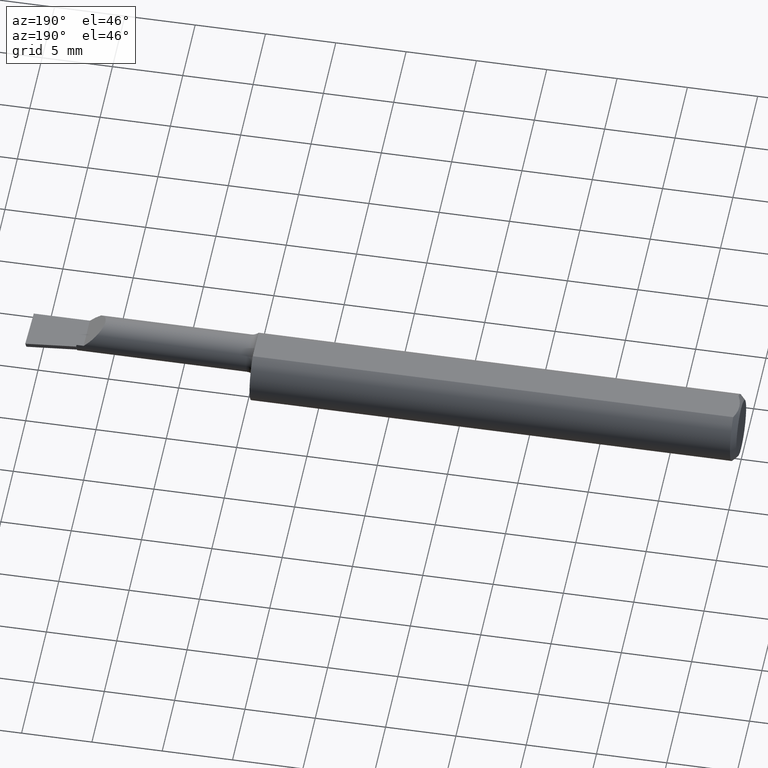
[diagram: clean part render]
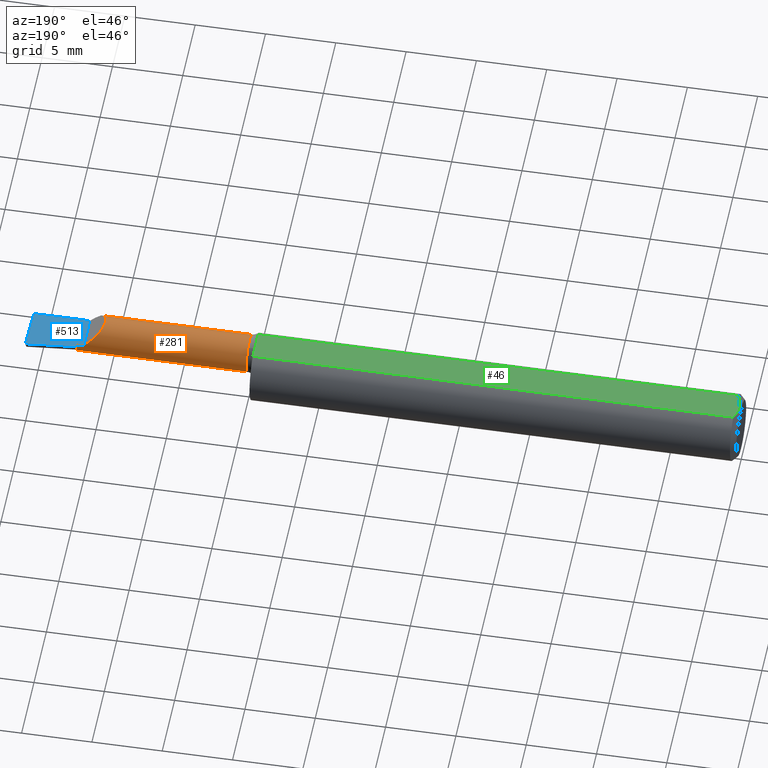
[diagram: same view with three faces highlighted in distinct colors, each labeled with its STEP entity id]
A machine part, auxiliary view with three faces highlighted in distinct colors.
Their STEP definitions:

[orange] entity #281 — the highlighted cylindrical surface (edge-blend (fillet) strip) has radius 1.3183 mm, axis along (-1, 0, -0).
#1 = VERTEX_POINT ( 'NONE', #547 ) ;
#7 = CARTESIAN_POINT ( 'NONE',  ( 1.859999999999999876, 0.004399999999999992459, 1.030335658007946637E-15 ) ) ;
#12 = ORIENTED_EDGE ( 'NONE', *, *, #304, .F. ) ;
#13 = VERTEX_POINT ( 'NONE', #493 ) ;
#15 = CARTESIAN_POINT ( 'NONE',  ( 1.991742529076753199, -0.04749999999999999362, -0.05189999999999998087 ) ) ;
#22 = DIRECTION ( 'NONE',  ( 0.000000000000000000, -1.000000000000000000, 0.000000000000000000 ) ) ;
#24 = DIRECTION ( 'NONE',  ( -1.000000000000000000, 4.268512490100411279E-18, -0.000000000000000000 ) ) ;
#27 = VERTEX_POINT ( 'NONE', #264 ) ;
#28 = CARTESIAN_POINT ( 'NONE',  ( 1.384999999999999787, -0.04749999999999999362, 0.000000000000000000 ) ) ;
#31 = VECTOR ( 'NONE', #179, 39.37007874015748143 ) ;
#39 = CARTESIAN_POINT ( 'NONE',  ( 1.859999999999999876, -0.02123896744732987896, -0.04476570304672537748 ) ) ;
#47 = CARTESIAN_POINT ( 'NONE',  ( 1.622500000000000053, -0.08761684210526321515, 0.03292793615611789432 ) ) ;
#51 = ORIENTED_EDGE ( 'NONE', *, *, #124, .T. ) ;
#52 = VECTOR ( 'NONE', #233, 39.37007874015748143 ) ;
#60 = CIRCLE ( 'NONE', #94, 0.05189999999999998781 ) ;
#63 = CARTESIAN_POINT ( 'NONE',  ( 1.840000000000000080, 0.004399999999999856283, 1.959434878635762025E-17 ) ) ;
#89 = VERTEX_POINT ( 'NONE', #39 ) ;
#91 = ORIENTED_EDGE ( 'NONE', *, *, #368, .T. ) ;
#94 = AXIS2_PLACEMENT_3D ( 'NONE', #607, #130, #362 ) ;
#103 = CARTESIAN_POINT ( 'NONE',  ( 1.991742529076753199, -0.04749999999999999362, -0.05189999999999998087 ) ) ;
#109 = CIRCLE ( 'NONE', #590, 0.05189999999999997393 ) ;
#115 = CIRCLE ( 'NONE', #196, 0.05189999999999998781 ) ;
#119 = ORIENTED_EDGE ( 'NONE', *, *, #238, .F. ) ;
#124 = EDGE_CURVE ( 'NONE', #13, #279, #132, .T. ) ;
#130 = DIRECTION ( 'NONE',  ( -1.000000000000000000, 4.268512490100411279E-18, -0.000000000000000000 ) ) ;
#132 = LINE ( 'NONE', #278, #146 ) ;
#137 = DIRECTION ( 'NONE',  ( 1.000000000000000000, -4.268512490100411279E-18, 0.000000000000000000 ) ) ;
#146 = VECTOR ( 'NONE', #137, 39.37007874015748143 ) ;
#149 = AXIS2_PLACEMENT_3D ( 'NONE', #581, #489, #447 ) ;
#151 = EDGE_CURVE ( 'NONE', #1, #220, #603, .T. ) ;
#163 = DIRECTION ( 'NONE',  ( 1.000000000000000000, -4.268512490100411279E-18, 0.000000000000000000 ) ) ;
#165 = CARTESIAN_POINT ( 'NONE',  ( 1.993022307651336700, -0.08761684210526321515, -0.03292793615611789432 ) ) ;
#179 = DIRECTION ( 'NONE',  ( -1.000000000000000000, 5.691349986800549142E-18, -0.000000000000000000 ) ) ;
#185 = CARTESIAN_POINT ( 'NONE',  ( 1.859999999999999876, -0.04749999999999999362, 0.000000000000000000 ) ) ;
#196 = AXIS2_PLACEMENT_3D ( 'NONE', #185, #367, #566 ) ;
#198 = CARTESIAN_POINT ( 'NONE',  ( 1.761940995672496957, -0.05057322517486229768, 0.07805900432750242923 ) ) ;
#202 = CARTESIAN_POINT ( 'NONE',  ( 1.991784456001939763, -0.07759022324566727802, -0.04514359047872660430 ) ) ;
#216 = EDGE_CURVE ( 'NONE', #89, #228, #115, .T. ) ;
#220 = VERTEX_POINT ( 'NONE', #328 ) ;
#227 = DIRECTION ( 'NONE',  ( -1.000000000000000000, 4.268512490100411279E-18, -0.000000000000000000 ) ) ;
#228 = VERTEX_POINT ( 'NONE', #554 ) ;
#231 = ORIENTED_EDGE ( 'NONE', *, *, #301, .T. ) ;
#233 = DIRECTION ( 'NONE',  ( 1.000000000000000000, -4.268512490100411279E-18, 0.000000000000000000 ) ) ;
#238 = EDGE_CURVE ( 'NONE', #1, #298, #374, .T. ) ;
#240 = VERTEX_POINT ( 'NONE', #486 ) ;
#250 = ORIENTED_EDGE ( 'NONE', *, *, #440, .T. ) ;
#264 = CARTESIAN_POINT ( 'NONE',  ( 1.859999999999999876, -0.001959391508022335134, -0.02489303071504973125 ) ) ;
#272 = CARTESIAN_POINT ( 'NONE',  ( 1.622500000000000053, -0.08761684210526321515, -0.03292793615611789432 ) ) ;
#278 = CARTESIAN_POINT ( 'NONE',  ( 2.215357982367771208E-19, 0.004399999999999967305, 1.030335658007946046E-15 ) ) ;
#279 = VERTEX_POINT ( 'NONE', #7 ) ;
#281 = ADVANCED_FACE ( 'NONE', ( #346 ), #592, .T. ) ;
#298 = VERTEX_POINT ( 'NONE', #15 ) ;
#301 = EDGE_CURVE ( 'NONE', #240, #13, #619, .T. ) ;
#304 = EDGE_CURVE ( 'NONE', #89, #27, #109, .T. ) ;
#328 = CARTESIAN_POINT ( 'NONE',  ( 1.384999999999999787, -0.08761684210526317351, -0.03292793615611790820 ) ) ;
#346 = FACE_OUTER_BOUND ( 'NONE', #530, .T. ) ;
#362 = DIRECTION ( 'NONE',  ( 0.000000000000000000, -1.000000000000000000, 0.000000000000000000 ) ) ;
#367 = DIRECTION ( 'NONE',  ( -1.000000000000000000, 4.268512490100411279E-18, -0.000000000000000000 ) ) ;
#368 = EDGE_CURVE ( 'NONE', #487, #240, #476, .T. ) ;
#374 =( BOUNDED_CURVE ( )  B_SPLINE_CURVE ( 3, ( #165, #202, #443, #103 ),
 .UNSPECIFIED., .F., .F. ) 
 B_SPLINE_CURVE_WITH_KNOTS ( ( 4, 4 ),
 ( 5.609734720198428448, 6.493234751459652898 ),
 .UNSPECIFIED. ) 
 CURVE ( )  GEOMETRIC_REPRESENTATION_ITEM ( )  RATIONAL_B_SPLINE_CURVE ( ( 1.000000000000000000, 0.9360032516356640020, 0.9360032516356640020, 1.000000000000000000 ) ) 
 REPRESENTATION_ITEM ( '' )  );
#383 = CIRCLE ( 'NONE', #589, 0.05189999999999993924 ) ;
#384 = ORIENTED_EDGE ( 'NONE', *, *, #151, .T. ) ;
#390 = CARTESIAN_POINT ( 'NONE',  ( 1.807072063843881971, -0.08761684210526324290, 0.03292793615611787350 ) ) ;
#398 = DIRECTION ( 'NONE',  ( 0.000000000000000000, -1.000000000000000000, 0.000000000000000000 ) ) ;
#412 = ORIENTED_EDGE ( 'NONE', *, *, #550, .F. ) ;
#431 = EDGE_CURVE ( 'NONE', #487, #220, #383, .T. ) ;
#439 = CARTESIAN_POINT ( 'NONE',  ( 1.859999999999999876, -0.04749999999999999362, 0.000000000000000000 ) ) ;
#440 = EDGE_CURVE ( 'NONE', #279, #27, #60, .T. ) ;
#442 = ORIENTED_EDGE ( 'NONE', *, *, #216, .T. ) ;
#443 = CARTESIAN_POINT ( 'NONE',  ( 1.991328695984601493, -0.06330364819543492227, -0.05189999999999998087 ) ) ;
#447 = DIRECTION ( 'NONE',  ( -4.268512490100411279E-18, -1.000000000000000000, 0.000000000000000000 ) ) ;
#449 = CARTESIAN_POINT ( 'NONE',  ( 1.781612990575158539, 0.004399999999999963836, 0.05838700942484083972 ) ) ;
#476 = LINE ( 'NONE', #47, #52 ) ;
#486 = CARTESIAN_POINT ( 'NONE',  ( 1.807072063843881971, -0.08761684210526324290, 0.03292793615611787350 ) ) ;
#487 = VERTEX_POINT ( 'NONE', #559 ) ;
#489 = DIRECTION ( 'NONE',  ( -1.000000000000000000, 4.268512490100411279E-18, -0.000000000000000000 ) ) ;
#493 = CARTESIAN_POINT ( 'NONE',  ( 1.840000000000000080, 0.004399999999999856283, 1.959434878635762025E-17 ) ) ;
#496 = VECTOR ( 'NONE', #227, 39.37007874015748143 ) ;
#525 = LINE ( 'NONE', #611, #31 ) ;
#530 = EDGE_LOOP ( 'NONE', ( #119, #384, #613, #91, #231, #51, #250, #12, #442, #412 ) ) ;
#547 = CARTESIAN_POINT ( 'NONE',  ( 1.993022307651336700, -0.08761684210526321515, -0.03292793615611789432 ) ) ;
#550 = EDGE_CURVE ( 'NONE', #298, #228, #525, .T. ) ;
#554 = CARTESIAN_POINT ( 'NONE',  ( 1.859999999999999876, -0.04749999999999999362, -0.05189999999999998087 ) ) ;
#559 = CARTESIAN_POINT ( 'NONE',  ( 1.384999999999999787, -0.08761684210526317351, 0.03292793615611790126 ) ) ;
#566 = DIRECTION ( 'NONE',  ( 0.000000000000000000, -1.000000000000000000, 0.000000000000000000 ) ) ;
#581 = CARTESIAN_POINT ( 'NONE',  ( 0.000000000000000000, -0.04749999999999998668, 0.000000000000000000 ) ) ;
#589 = AXIS2_PLACEMENT_3D ( 'NONE', #28, #24, #22 ) ;
#590 = AXIS2_PLACEMENT_3D ( 'NONE', #439, #163, #398 ) ;
#592 = CYLINDRICAL_SURFACE ( 'NONE', #149, 0.05189999999999996699 ) ;
#603 = LINE ( 'NONE', #272, #496 ) ;
#607 = CARTESIAN_POINT ( 'NONE',  ( 1.859999999999999876, -0.04749999999999999362, 0.000000000000000000 ) ) ;
#611 = CARTESIAN_POINT ( 'NONE',  ( 2.000000000000000000, -0.04749999999999999362, -0.05189999999999998087 ) ) ;
#613 = ORIENTED_EDGE ( 'NONE', *, *, #431, .F. ) ;
#619 =( BOUNDED_CURVE ( )  B_SPLINE_CURVE ( 3, ( #390, #198, #449, #63 ),
 .UNSPECIFIED., .F., .T. ) 
 B_SPLINE_CURVE_WITH_KNOTS ( ( 4, 4 ),
 ( 5.399685275918360006, 7.853981633974482790 ),
 .UNSPECIFIED. ) 
 CURVE ( )  GEOMETRIC_REPRESENTATION_ITEM ( )  RATIONAL_B_SPLINE_CURVE ( ( 1.000000000000000000, 0.5579494491034518999, 0.5579494491034518999, 1.000000000000000000 ) ) 
 REPRESENTATION_ITEM ( '' )  );

[blue] entity #513 — the highlighted planar face has unit normal (-0, 0, -1).
#4 = CARTESIAN_POINT ( 'NONE',  ( 1.996910061254836721, -0.09360000000000012754, -6.663204267364690931E-17 ) ) ;
#7 = CARTESIAN_POINT ( 'NONE',  ( 1.859999999999999876, 0.004399999999999992459, 1.030335658007946637E-15 ) ) ;
#13 = VERTEX_POINT ( 'NONE', #493 ) ;
#16 = CARTESIAN_POINT ( 'NONE',  ( 1.992819506803471308, -0.2498119721683277616, -6.435184055121738529E-17 ) ) ;
#17 = EDGE_CURVE ( 'NONE', #445, #13, #540, .T. ) ;
#21 = CARTESIAN_POINT ( 'NONE',  ( 5.659797890829555466E-31, -0.09359999999999998876, 1.030335658007946046E-15 ) ) ;
#43 = EDGE_CURVE ( 'NONE', #262, #510, #256, .T. ) ;
#73 = FACE_OUTER_BOUND ( 'NONE', #369, .T. ) ;
#79 = DIRECTION ( 'NONE',  ( 0.9953961983671787417, 0.09584575252022461966, -5.467869873542577569E-16 ) ) ;
#87 = EDGE_CURVE ( 'NONE', #262, #445, #591, .T. ) ;
#92 = CARTESIAN_POINT ( 'NONE',  ( 1.859999999999999876, -0.2500000000000000555, 8.608030207862190690E-18 ) ) ;
#106 = VECTOR ( 'NONE', #288, 39.37007874015748143 ) ;
#117 = CARTESIAN_POINT ( 'NONE',  ( 1.840000000000000080, -0.2500000000000000555, 1.959434878635762025E-17 ) ) ;
#124 = EDGE_CURVE ( 'NONE', #13, #279, #132, .T. ) ;
#132 = LINE ( 'NONE', #278, #146 ) ;
#137 = DIRECTION ( 'NONE',  ( 1.000000000000000000, -4.268512490100411279E-18, 0.000000000000000000 ) ) ;
#146 = VECTOR ( 'NONE', #137, 39.37007874015748143 ) ;
#195 = ORIENTED_EDGE ( 'NONE', *, *, #620, .F. ) ;
#210 = DIRECTION ( 'NONE',  ( -1.000000000000000000, -0.000000000000000000, -0.000000000000000000 ) ) ;
#211 = CARTESIAN_POINT ( 'NONE',  ( 1.253289949938072301, -0.04749999999999999362, 3.418835249456273698E-16 ) ) ;
#222 = VECTOR ( 'NONE', #402, 39.37007874015748854 ) ;
#247 = VERTEX_POINT ( 'NONE', #259 ) ;
#256 = LINE ( 'NONE', #16, #222 ) ;
#259 = CARTESIAN_POINT ( 'NONE',  ( 1.859999999999999876, 0.01091953325234668211, 1.037248535094399938E-15 ) ) ;
#260 = DIRECTION ( 'NONE',  ( -0.000000000000000000, 1.000000000000000000, -0.000000000000000000 ) ) ;
#261 = CARTESIAN_POINT ( 'NONE',  ( 2.000000000000000000, -0.2500000000000000555, -6.829619984160658046E-17 ) ) ;
#262 = VERTEX_POINT ( 'NONE', #4 ) ;
#278 = CARTESIAN_POINT ( 'NONE',  ( 2.215357982367771208E-19, 0.004399999999999967305, 1.030335658007946046E-15 ) ) ;
#279 = VERTEX_POINT ( 'NONE', #7 ) ;
#288 = DIRECTION ( 'NONE',  ( 4.268512490100411279E-18, 1.000000000000000000, -2.344761903626518103E-33 ) ) ;
#293 = ORIENTED_EDGE ( 'NONE', *, *, #124, .F. ) ;
#354 = VECTOR ( 'NONE', #79, 39.37007874015748143 ) ;
#369 = EDGE_LOOP ( 'NONE', ( #605, #480, #437, #195, #293, #501 ) ) ;
#402 = DIRECTION ( 'NONE',  ( 0.02617694830785724860, 0.9996573249755575929, -1.459184416195239787E-17 ) ) ;
#410 = DIRECTION ( 'NONE',  ( -5.493159289247764363E-16, 0.000000000000000000, -1.000000000000000000 ) ) ;
#414 = DIRECTION ( 'NONE',  ( -1.000000000000000000, 0.000000000000000000, 5.493159289247764363E-16 ) ) ;
#437 = ORIENTED_EDGE ( 'NONE', *, *, #444, .F. ) ;
#441 = AXIS2_PLACEMENT_3D ( 'NONE', #261, #410, #414 ) ;
#444 = EDGE_CURVE ( 'NONE', #247, #510, #508, .T. ) ;
#445 = VERTEX_POINT ( 'NONE', #500 ) ;
#462 = PLANE ( 'NONE',  #441 ) ;
#466 = VECTOR ( 'NONE', #260, 39.37007874015748143 ) ;
#480 = ORIENTED_EDGE ( 'NONE', *, *, #43, .T. ) ;
#493 = CARTESIAN_POINT ( 'NONE',  ( 1.840000000000000080, 0.004399999999999856283, 1.959434878635762025E-17 ) ) ;
#500 = CARTESIAN_POINT ( 'NONE',  ( 1.840000000000000080, -0.09360000000000005815, 1.959434878635762025E-17 ) ) ;
#501 = ORIENTED_EDGE ( 'NONE', *, *, #17, .F. ) ;
#505 = CARTESIAN_POINT ( 'NONE',  ( 2.000000000000003109, 0.02440000000001005948, 3.224674438849418667E-14 ) ) ;
#508 = LINE ( 'NONE', #211, #354 ) ;
#510 = VERTEX_POINT ( 'NONE', #505 ) ;
#513 = ADVANCED_FACE ( 'NONE', ( #73 ), #462, .F. ) ;
#526 = VECTOR ( 'NONE', #210, 39.37007874015748143 ) ;
#540 = LINE ( 'NONE', #117, #466 ) ;
#570 = LINE ( 'NONE', #92, #106 ) ;
#591 = LINE ( 'NONE', #21, #526 ) ;
#605 = ORIENTED_EDGE ( 'NONE', *, *, #87, .F. ) ;
#620 = EDGE_CURVE ( 'NONE', #279, #247, #570, .T. ) ;

[green] entity #46 — the highlighted planar face has unit normal (0, -0, -1).
#3 = VECTOR ( 'NONE', #59, 39.37007874015748143 ) ;
#9 = ORIENTED_EDGE ( 'NONE', *, *, #255, .F. ) ;
#19 = CARTESIAN_POINT ( 'NONE',  ( 1.359999999999999876, -0.04209513035969843220, 0.08360000000000000764 ) ) ;
#45 = VERTEX_POINT ( 'NONE', #113 ) ;
#46 = ADVANCED_FACE ( 'NONE', ( #595 ), #305, .F. ) ;
#59 = DIRECTION ( 'NONE',  ( -1.000000000000000000, -0.000000000000000000, -0.000000000000000000 ) ) ;
#67 = CARTESIAN_POINT ( 'NONE',  ( 0.000000000000000000, 0.04209513035969837669, 0.08360000000000000764 ) ) ;
#69 = CARTESIAN_POINT ( 'NONE',  ( 1.359999999999999876, 0.1436000000000000332, 0.08359999999999999376 ) ) ;
#98 = CARTESIAN_POINT ( 'NONE',  ( 0.005000000000000236026, 1.025183009042025117E-17, 0.08360000000000000764 ) ) ;
#112 = CARTESIAN_POINT ( 'NONE',  ( 0.005000000000000236026, 1.025183009042025117E-17, 0.08360000000000000764 ) ) ;
#113 = CARTESIAN_POINT ( 'NONE',  ( 0.01499999999999999944, -0.04209513035969835587, 0.08360000000000000764 ) ) ;
#126 = LINE ( 'NONE', #67, #266 ) ;
#128 = ORIENTED_EDGE ( 'NONE', *, *, #180, .F. ) ;
#159 = AXIS2_PLACEMENT_3D ( 'NONE', #549, #203, #552 ) ;
#160 = CARTESIAN_POINT ( 'NONE',  ( 0.01203648650249650523, 0.03550565407121123590, 0.08360000000000000764 ) ) ;
#180 = EDGE_CURVE ( 'NONE', #45, #375, #520, .T. ) ;
#189 = ORIENTED_EDGE ( 'NONE', *, *, #460, .F. ) ;
#201 = EDGE_LOOP ( 'NONE', ( #189, #430, #622, #128, #9 ) ) ;
#203 = DIRECTION ( 'NONE',  ( 0.000000000000000000, -1.189000693621284344E-16, -1.000000000000000000 ) ) ;
#221 = LINE ( 'NONE', #69, #405 ) ;
#234 = EDGE_CURVE ( 'NONE', #342, #567, #126, .T. ) ;
#255 = EDGE_CURVE ( 'NONE', #351, #45, #436, .T. ) ;
#266 = VECTOR ( 'NONE', #300, 39.37007874015748143 ) ;
#271 = DIRECTION ( 'NONE',  ( -4.268512490100411279E-18, -1.000000000000000000, 1.189000693621284344E-16 ) ) ;
#284 = CARTESIAN_POINT ( 'NONE',  ( 1.359999999999999876, 0.04209513035969836975, 0.08360000000000000764 ) ) ;
#300 = DIRECTION ( 'NONE',  ( 1.000000000000000000, 0.000000000000000000, 0.000000000000000000 ) ) ;
#303 = CARTESIAN_POINT ( 'NONE',  ( 0.01499999999999999598, 0.04209513035969837669, 0.08360000000000000764 ) ) ;
#305 = PLANE ( 'NONE',  #159 ) ;
#310 = EDGE_CURVE ( 'NONE', #375, #342, #407, .T. ) ;
#322 = CARTESIAN_POINT ( 'NONE',  ( 0.005975039161239525769, -0.01453776427033148279, 0.08359999999999997988 ) ) ;
#342 = VERTEX_POINT ( 'NONE', #303 ) ;
#350 = CARTESIAN_POINT ( 'NONE',  ( 0.005981829149300850468, 0.01454044632356567279, 0.08360000000000000764 ) ) ;
#351 = VERTEX_POINT ( 'NONE', #19 ) ;
#375 = VERTEX_POINT ( 'NONE', #98 ) ;
#382 = CARTESIAN_POINT ( 'NONE',  ( 0.01499999999999999598, 0.04209513035969837669, 0.08360000000000000764 ) ) ;
#386 = CARTESIAN_POINT ( 'NONE',  ( 0.009492654797564337166, 0.02859466010166625619, 0.08359999999999997988 ) ) ;
#405 = VECTOR ( 'NONE', #271, 39.37007874015748143 ) ;
#407 = B_SPLINE_CURVE_WITH_KNOTS ( 'NONE', 3,
 ( #112, #585, #350, #386, #160, #382 ),
 .UNSPECIFIED., .F., .F.,
 ( 4, 2, 4 ),
 ( 0.006881281100865560205, 0.007427683811376459971, 0.007974086521887359738 ),
 .UNSPECIFIED. ) ;
#423 = CARTESIAN_POINT ( 'NONE',  ( 0.009539353699420832430, -0.02875682547511371895, 0.08360000000000000764 ) ) ;
#430 = ORIENTED_EDGE ( 'NONE', *, *, #234, .F. ) ;
#436 = LINE ( 'NONE', #492, #3 ) ;
#460 = EDGE_CURVE ( 'NONE', #567, #351, #221, .T. ) ;
#461 = CARTESIAN_POINT ( 'NONE',  ( 0.005000000000000228220, -0.007328888879231052964, 0.08360000000000000764 ) ) ;
#492 = CARTESIAN_POINT ( 'NONE',  ( 0.000000000000000000, -0.04209513035969835587, 0.08360000000000000764 ) ) ;
#520 = B_SPLINE_CURVE_WITH_KNOTS ( 'NONE', 3,
 ( #608, #615, #423, #322, #461, #564 ),
 .UNSPECIFIED., .F., .F.,
 ( 4, 2, 4 ),
 ( 0.005785415439423114564, 0.006333348270144337384, 0.006881281100865560205 ),
 .UNSPECIFIED. ) ;
#549 = CARTESIAN_POINT ( 'NONE',  ( 2.000000000000000000, 0.1436000000000000332, 0.08359999999999999376 ) ) ;
#552 = DIRECTION ( 'NONE',  ( 0.000000000000000000, 1.000000000000000000, -1.189000693621284344E-16 ) ) ;
#564 = CARTESIAN_POINT ( 'NONE',  ( 0.005000000000000236026, 1.025183009042025117E-17, 0.08360000000000000764 ) ) ;
#567 = VERTEX_POINT ( 'NONE', #284 ) ;
#585 = CARTESIAN_POINT ( 'NONE',  ( 0.005000000000000223883, 0.007308422719211823959, 0.08360000000000000764 ) ) ;
#595 = FACE_OUTER_BOUND ( 'NONE', #201, .T. ) ;
#608 = CARTESIAN_POINT ( 'NONE',  ( 0.01499999999999999944, -0.04209513035969835587, 0.08360000000000000764 ) ) ;
#615 = CARTESIAN_POINT ( 'NONE',  ( 0.01206089165507025739, -0.03555991978469312531, 0.08360000000000000764 ) ) ;
#622 = ORIENTED_EDGE ( 'NONE', *, *, #310, .F. ) ;